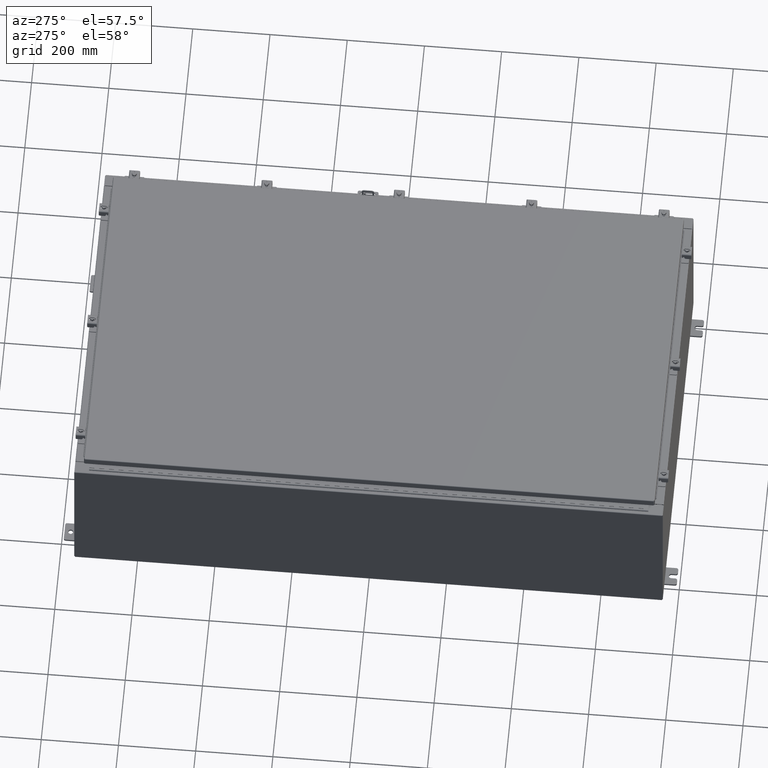
[diagram: clean part render]
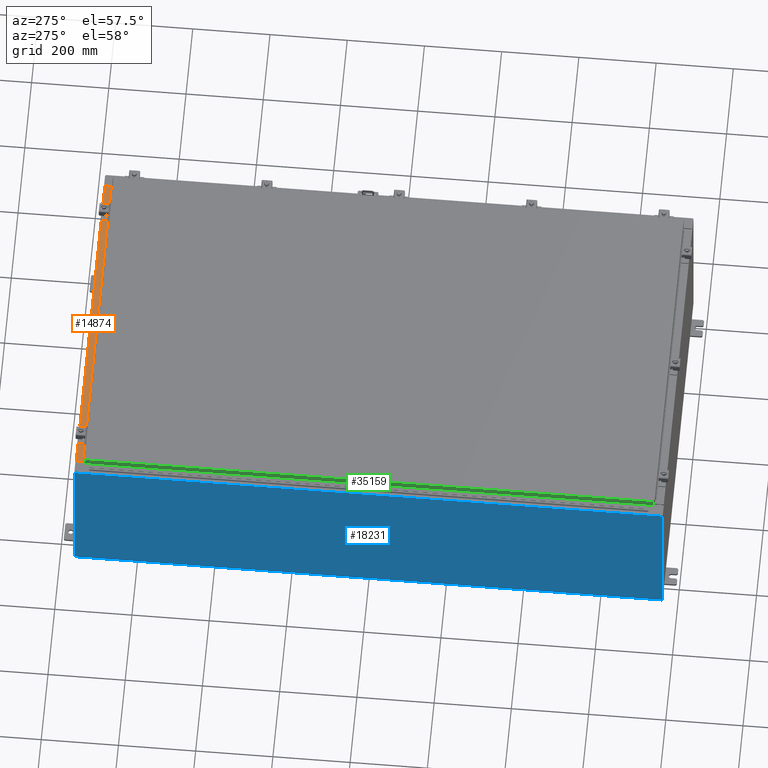
[diagram: same view with three faces highlighted in distinct colors, each labeled with its STEP entity id]
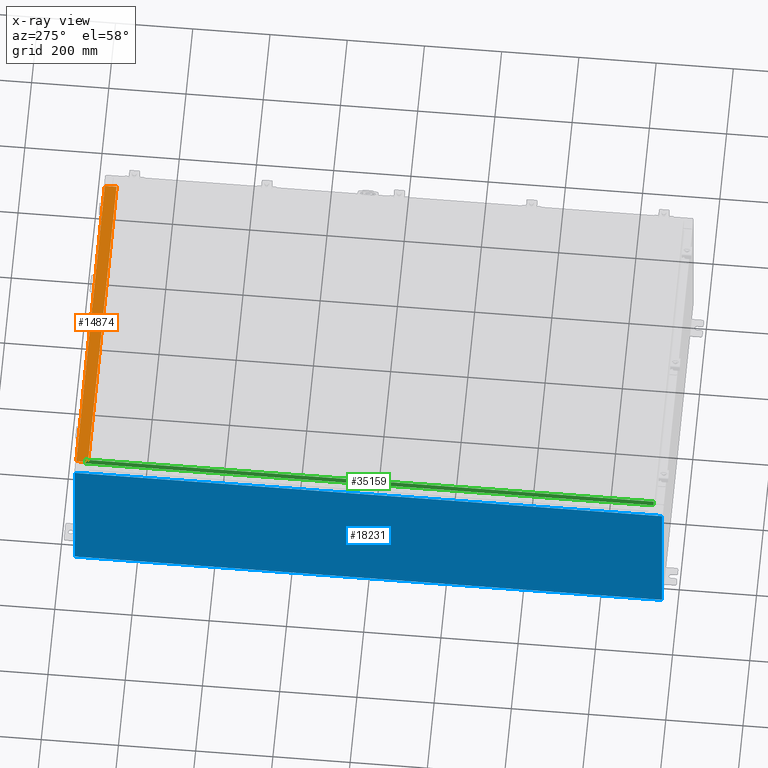
[diagram: x-ray of the same camera — body ghosted, the three highlighted faces saturated]
A machine part, auxiliary view with three faces highlighted in distinct colors.
The next image is the same camera in x-ray (body ghosted, the three faces saturated) — at least one of them is partly hidden behind the body in this view.
Their STEP definitions:

[orange] entity #14874 — the highlighted planar face has unit normal (0, 0, 1).
#512 = EDGE_CURVE ( 'NONE', #32397, #1635, #8945, .T. ) ;
#1508 = CARTESIAN_POINT ( 'NONE',  ( -16.63720000000000000, -0.08770000000000136000, 8.000000000000001800 ) ) ;
#1635 = VERTEX_POINT ( 'NONE', #1508 ) ;
#3596 = CARTESIAN_POINT ( 'NONE',  ( 5.250912337413644300E-016, 2.852545452309695200E-014, 8.000000000000001800 ) ) ;
#3707 = DIRECTION ( 'NONE',  ( -1.000000000000000000, -6.568047492761434800E-017, 6.568047492761457000E-017 ) ) ;
#4518 = VECTOR ( 'NONE', #44065, 39.37007874015748100 ) ;
#6004 = FACE_OUTER_BOUND ( 'NONE', #52784, .T. ) ;
#7746 = AXIS2_PLACEMENT_3D ( 'NONE', #3596, #8503, #42530 ) ;
#8503 = DIRECTION ( 'NONE',  ( 6.568047492761433500E-017, 3.566381192773190000E-015, 1.000000000000000000 ) ) ;
#8945 = LINE ( 'NONE', #24042, #46194 ) ;
#12384 = ORIENTED_EDGE ( 'NONE', *, *, #55048, .T. ) ;
#13152 = ORIENTED_EDGE ( 'NONE', *, *, #25097, .F. ) ;
#14874 = ADVANCED_FACE ( 'NONE', ( #6004 ), #37612, .T. ) ;
#16108 = DIRECTION ( 'NONE',  ( -0.0000000000000000000, -1.000000000000000000, 3.566381192773190000E-015 ) ) ;
#18169 = CARTESIAN_POINT ( 'NONE',  ( -16.63720000000000000, -1.287299999999999400, 8.000000000000007100 ) ) ;
#19768 = DIRECTION ( 'NONE',  ( -0.0000000000000000000, 1.000000000000000000, -3.566381192773190000E-015 ) ) ;
#20418 = CARTESIAN_POINT ( 'NONE',  ( 16.63720000000000400, -0.08770000000000102700, 8.000000000000000000 ) ) ;
#20519 = LINE ( 'NONE', #54061, #4518 ) ;
#24042 = CARTESIAN_POINT ( 'NONE',  ( -16.63720000000000000, -0.07469999999999973900, 8.000000000000001800 ) ) ;
#25097 = EDGE_CURVE ( 'NONE', #46521, #32397, #20519, .T. ) ;
#28008 = VECTOR ( 'NONE', #16108, 39.37007874015748100 ) ;
#29165 = LINE ( 'NONE', #42632, #53494 ) ;
#32397 = VERTEX_POINT ( 'NONE', #18169 ) ;
#32585 = ORIENTED_EDGE ( 'NONE', *, *, #512, .F. ) ;
#37612 = PLANE ( 'NONE',  #7746 ) ;
#38728 = ORIENTED_EDGE ( 'NONE', *, *, #52332, .F. ) ;
#42530 = DIRECTION ( 'NONE',  ( 0.0000000000000000000, -1.000000000000000000, 3.566381192773190000E-015 ) ) ;
#42632 = CARTESIAN_POINT ( 'NONE',  ( 5.308514113925181600E-016, -0.08770000000000136000, 8.000000000000001800 ) ) ;
#44065 = DIRECTION ( 'NONE',  ( -1.000000000000000000, 0.0000000000000000000, 0.0000000000000000000 ) ) ;
#45220 = CARTESIAN_POINT ( 'NONE',  ( 16.63720000000000000, -1.300299999999999800, 8.000000000000003600 ) ) ;
#46194 = VECTOR ( 'NONE', #19768, 39.37007874015748100 ) ;
#46521 = VERTEX_POINT ( 'NONE', #56472 ) ;
#50776 = LINE ( 'NONE', #45220, #28008 ) ;
#52332 = EDGE_CURVE ( 'NONE', #53409, #46521, #50776, .T. ) ;
#52784 = EDGE_LOOP ( 'NONE', ( #32585, #13152, #38728, #12384 ) ) ;
#53409 = VERTEX_POINT ( 'NONE', #20418 ) ;
#53494 = VECTOR ( 'NONE', #3707, 39.37007874015748100 ) ;
#54061 = CARTESIAN_POINT ( 'NONE',  ( 16.63720000000000400, -1.287300000000000300, 8.000000000000003600 ) ) ;
#55048 = EDGE_CURVE ( 'NONE', #53409, #1635, #29165, .T. ) ;
#56472 = CARTESIAN_POINT ( 'NONE',  ( 16.63720000000000000, -1.287300000000000300, 8.000000000000003600 ) ) ;

[blue] entity #18231 — the highlighted planar face has unit normal (1, 0, 0).
#809 = CARTESIAN_POINT ( 'NONE',  ( -18.00000000000006000, -29.92530000000001800, 15.83759999999999700 ) ) ;
#1085 = EDGE_CURVE ( 'NONE', #32179, #45655, #12652, .T. ) ;
#5591 = VERTEX_POINT ( 'NONE', #53825 ) ;
#9620 = VECTOR ( 'NONE', #16861, 39.37007874015748100 ) ;
#12652 = LINE ( 'NONE', #27517, #9620 ) ;
#13034 = CARTESIAN_POINT ( 'NONE',  ( -18.00000000000000400, 0.0000000000000000000, -6.201571169367084500E-014 ) ) ;
#15496 = ORIENTED_EDGE ( 'NONE', *, *, #56155, .T. ) ;
#16315 = CARTESIAN_POINT ( 'NONE',  ( -18.00000000000000400, -29.92530000000001100, 0.01299999999999984700 ) ) ;
#16861 = DIRECTION ( 'NONE',  ( -3.430827668758847900E-015, 0.0000000000000000000, 1.000000000000000000 ) ) ;
#17360 = EDGE_CURVE ( 'NONE', #45655, #31945, #47351, .T. ) ;
#17933 = DIRECTION ( 'NONE',  ( 3.430827668758847900E-015, 0.0000000000000000000, -1.000000000000000000 ) ) ;
#18158 = ORIENTED_EDGE ( 'NONE', *, *, #1085, .T. ) ;
#18231 = ADVANCED_FACE ( 'NONE', ( #45876 ), #42203, .F. ) ;
#19283 = CARTESIAN_POINT ( 'NONE',  ( -18.00000000000005700, 29.92529999999998900, 15.83759999999999700 ) ) ;
#20133 = ORIENTED_EDGE ( 'NONE', *, *, #52390, .F. ) ;
#23978 = EDGE_LOOP ( 'NONE', ( #54462, #15496, #20133, #18158 ) ) ;
#27517 = CARTESIAN_POINT ( 'NONE',  ( -18.00000000000000400, -29.92530000000001100, -6.201571169367084500E-014 ) ) ;
#28698 = AXIS2_PLACEMENT_3D ( 'NONE', #13034, #47019, #17933 ) ;
#31945 = VERTEX_POINT ( 'NONE', #19283 ) ;
#32179 = VERTEX_POINT ( 'NONE', #16315 ) ;
#32804 = VECTOR ( 'NONE', #56278, 39.37007874015748100 ) ;
#34336 = LINE ( 'NONE', #51375, #32804 ) ;
#34713 = CARTESIAN_POINT ( 'NONE',  ( -18.00000000000006000, -29.92530000000001100, 15.83759999999999700 ) ) ;
#37852 = LINE ( 'NONE', #50312, #47704 ) ;
#42203 = PLANE ( 'NONE',  #28698 ) ;
#45655 = VERTEX_POINT ( 'NONE', #34713 ) ;
#45876 = FACE_OUTER_BOUND ( 'NONE', #23978, .T. ) ;
#47019 = DIRECTION ( 'NONE',  ( 1.000000000000000000, 0.0000000000000000000, 3.430827668758847900E-015 ) ) ;
#47351 = LINE ( 'NONE', #809, #58798 ) ;
#47704 = VECTOR ( 'NONE', #55196, 39.37007874015748100 ) ;
#50312 = CARTESIAN_POINT ( 'NONE',  ( -18.00000000000000400, 29.92529999999998900, 0.01299999999999984700 ) ) ;
#51375 = CARTESIAN_POINT ( 'NONE',  ( -18.00000000000000400, 29.92529999999998900, -6.201571169367084500E-014 ) ) ;
#52390 = EDGE_CURVE ( 'NONE', #32179, #5591, #37852, .T. ) ;
#53825 = CARTESIAN_POINT ( 'NONE',  ( -18.00000000000000400, 29.92529999999998600, 0.01299999999999984800 ) ) ;
#54462 = ORIENTED_EDGE ( 'NONE', *, *, #17360, .T. ) ;
#55196 = DIRECTION ( 'NONE',  ( -0.0000000000000000000, 1.000000000000000000, -0.0000000000000000000 ) ) ;
#56155 = EDGE_CURVE ( 'NONE', #31945, #5591, #34336, .T. ) ;
#56278 = DIRECTION ( 'NONE',  ( 3.430827668758847900E-015, 0.0000000000000000000, -1.000000000000000000 ) ) ;
#58798 = VECTOR ( 'NONE', #59081, 39.37007874015748100 ) ;
#59081 = DIRECTION ( 'NONE',  ( 0.0000000000000000000, 1.000000000000000000, 0.0000000000000000000 ) ) ;

[green] entity #35159 — the highlighted planar face has unit normal (1, -0, -0).
#2759 = LINE ( 'NONE', #13332, #41592 ) ;
#6342 = VERTEX_POINT ( 'NONE', #42277 ) ;
#13332 = CARTESIAN_POINT ( 'NONE',  ( -17.07799999999999900, -29.09400000000000100, -0.08770000000000004200 ) ) ;
#13966 = EDGE_CURVE ( 'NONE', #46045, #6342, #56289, .T. ) ;
#14034 = CARTESIAN_POINT ( 'NONE',  ( -17.07799999999999600, 29.00515786437626500, 2.546194915468487600E-013 ) ) ;
#14335 = DIRECTION ( 'NONE',  ( -3.034122441942816100E-015, 6.982962677686265900E-015, -1.000000000000000000 ) ) ;
#15342 = PLANE ( 'NONE',  #58233 ) ;
#18077 = ORIENTED_EDGE ( 'NONE', *, *, #39901, .F. ) ;
#18921 = DIRECTION ( 'NONE',  ( -3.034122441942816100E-015, 6.982962677686265900E-015, -1.000000000000000000 ) ) ;
#19639 = CARTESIAN_POINT ( 'NONE',  ( -17.07800000000000300, -29.09400000000000100, -0.7949999999999997100 ) ) ;
#20809 = ORIENTED_EDGE ( 'NONE', *, *, #13966, .F. ) ;
#21903 = EDGE_CURVE ( 'NONE', #57926, #46045, #40122, .T. ) ;
#21907 = FACE_OUTER_BOUND ( 'NONE', #49879, .T. ) ;
#24555 = DIRECTION ( 'NONE',  ( 7.511783855542072300E-017, 1.000000000000000000, 1.220664876525586700E-016 ) ) ;
#25595 = EDGE_CURVE ( 'NONE', #28131, #6342, #53116, .T. ) ;
#27213 = CARTESIAN_POINT ( 'NONE',  ( -17.07799999999999900, -29.00515786437626500, -0.08769999999999787700 ) ) ;
#27290 = VECTOR ( 'NONE', #18921, 39.37007874015748100 ) ;
#27846 = DIRECTION ( 'NONE',  ( -7.511783855542057500E-017, -1.000000000000000000, -7.511783855542072300E-017 ) ) ;
#28131 = VERTEX_POINT ( 'NONE', #59894 ) ;
#29036 = CARTESIAN_POINT ( 'NONE',  ( -17.07799999999999900, -29.00515786437626500, -0.07469999999999976700 ) ) ;
#29817 = CARTESIAN_POINT ( 'NONE',  ( -17.07799999999999600, 1.282862446849468500E-015, 5.207755671951099000E-014 ) ) ;
#30014 = DIRECTION ( 'NONE',  ( -3.034122441942816500E-015, 0.0000000000000000000, -1.000000000000000000 ) ) ;
#30456 = VECTOR ( 'NONE', #24555, 39.37007874015748100 ) ;
#35159 = ADVANCED_FACE ( 'NONE', ( #21907 ), #15342, .F. ) ;
#38553 = VECTOR ( 'NONE', #14335, 39.37007874015748100 ) ;
#39901 = EDGE_CURVE ( 'NONE', #28131, #57926, #2759, .T. ) ;
#40122 = LINE ( 'NONE', #29036, #38553 ) ;
#41592 = VECTOR ( 'NONE', #27846, 39.37007874015748100 ) ;
#42277 = CARTESIAN_POINT ( 'NONE',  ( -17.07799999999999600, 29.00515786437626500, -0.7949999999999926000 ) ) ;
#46045 = VERTEX_POINT ( 'NONE', #56971 ) ;
#46854 = ORIENTED_EDGE ( 'NONE', *, *, #25595, .T. ) ;
#49753 = ORIENTED_EDGE ( 'NONE', *, *, #21903, .F. ) ;
#49879 = EDGE_LOOP ( 'NONE', ( #18077, #46854, #20809, #49753 ) ) ;
#53116 = LINE ( 'NONE', #14034, #27290 ) ;
#56289 = LINE ( 'NONE', #19639, #30456 ) ;
#56971 = CARTESIAN_POINT ( 'NONE',  ( -17.07800000000000300, -29.00515786437626200, -0.7949999999999996000 ) ) ;
#57926 = VERTEX_POINT ( 'NONE', #27213 ) ;
#58233 = AXIS2_PLACEMENT_3D ( 'NONE', #29817, #59102, #30014 ) ;
#59102 = DIRECTION ( 'NONE',  ( 1.000000000000000000, -7.511783855542035400E-017, -3.034122441942816500E-015 ) ) ;
#59894 = CARTESIAN_POINT ( 'NONE',  ( -17.07799999999999600, 29.00515786437626500, -0.08769999999999567000 ) ) ;